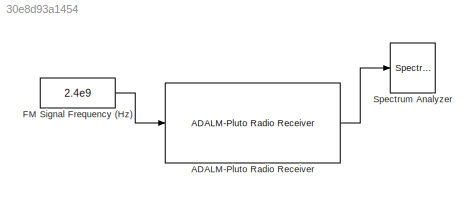
MODEL slx_30e8d93a1454
KIND model
CONFIG AbsTol = auto
CONFIG EnableMultiTasking = off
CONFIG FixedStep = auto
CONFIG MaxStep = auto
CONFIG MinStep = auto
CONFIG RelTol = 1e-3
CONFIG SampleTimeConstraint = Unconstrained
CONFIG SolverName = VariableStepAuto
CONFIG StartTime = 0.0
CONFIG StopTime = 10.0
BLOCK [Reference] ADALM-Pluto Radio Receiver  REF=plutoradiolib/ADALM-Pluto Radio
Receiver
  SourceBlock = plutoradiolib/ADALM-Pluto Radio\nReceiver
  SourceType = comm.SDRRxPluto
BLOCK [Constant] FM Signal Frequency (Hz)
  Value = 2.4e9
BLOCK [SpectrumAnalyzer] Spectrum Analyzer
  FrequencyScale = Log
  FrequencySpan = Start and stop frequencies
  GraphicalSettings = {"GraphicalSettings":{"Style":{"BackgroundColor":[0.12941176470588237,0.12941176470588237,0.12941176470588237],"AxesColor":[0.07058823529411765,0.07058823529411765,0.07058823529411765],"LabelsColor":[0.8509803921568627,0.8509803921568627,0.8509803921568627],"PreserveColors":false,"Visible":[true],"LineStyle":["-"],"LineColor":[[1,1,0.06666666666666667]],"LineWidth":[1.5],"Marker":["none"],"FontSiz...<+929ch>
  PlotAsTwoSidedSpectrum = off
  SampleRate = 44.1e3
  SampleRateSource = Property
  ScopeFrameLocation = window
  StartFrequency = 20
  StopFrequency = 20e3
  ViewType = Spectrum and spectrogram
  WasSavedAsWebScope = on
  WindowPosition = [1.000000,49.000000,1536.000000,793.000000,]
  YLimits = [-8.4750331,40.60180104]
LINE ADALM-Pluto Radio Receiver:1 -> Spectrum Analyzer:1
LINE FM Signal Frequency (Hz):1 -> ADALM-Pluto Radio Receiver:1
